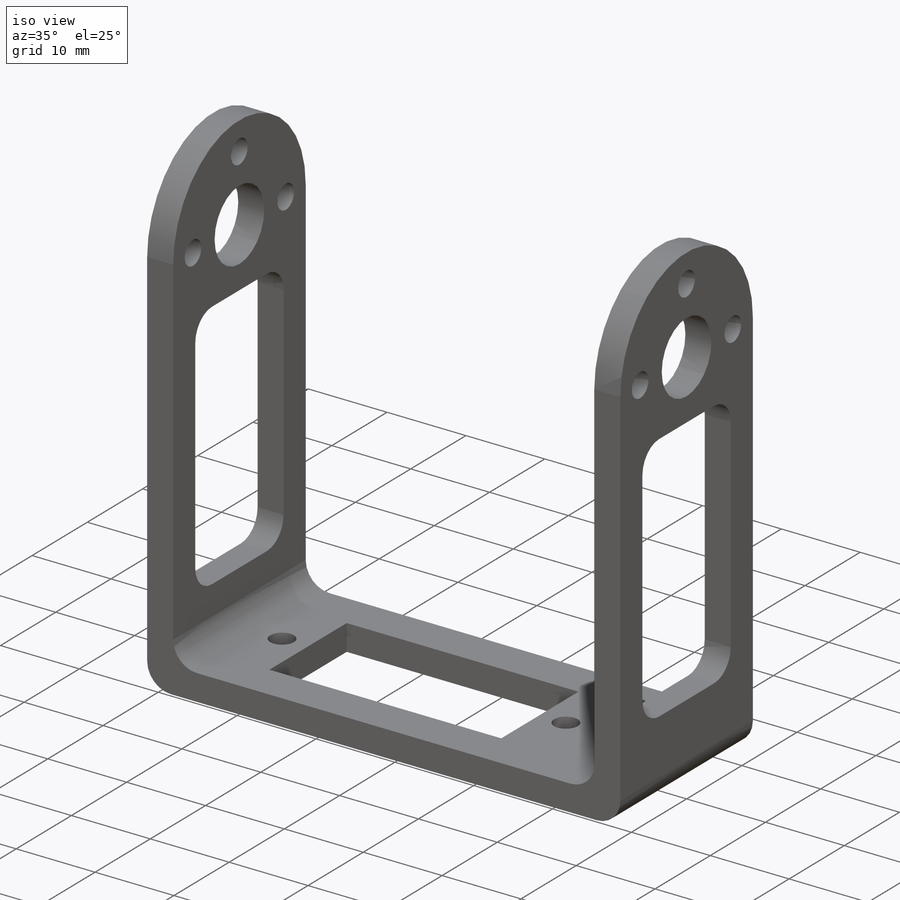
[diagram: iso view]
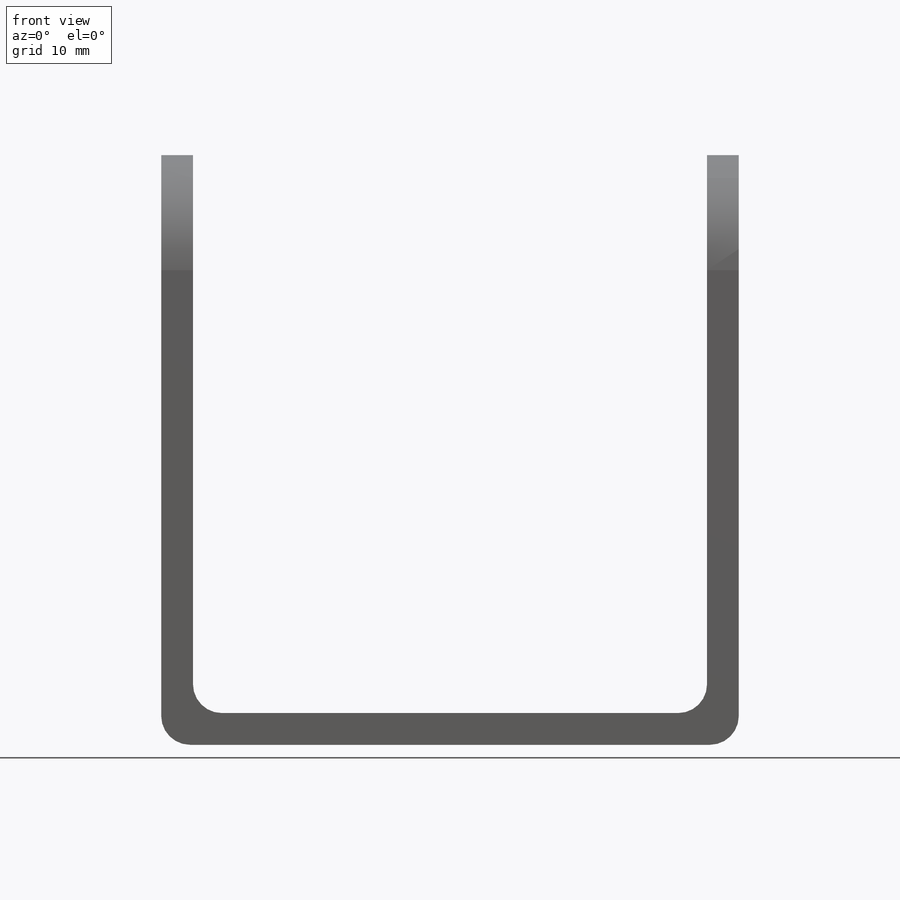
[diagram: front view]
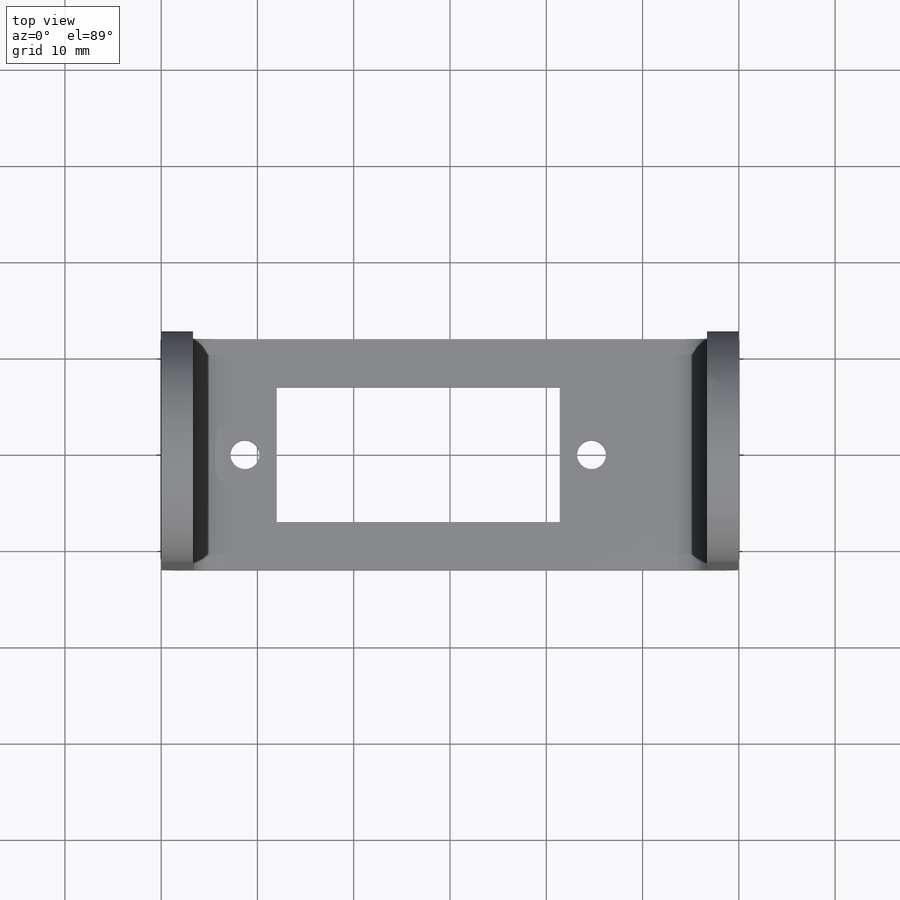
[diagram: top view]
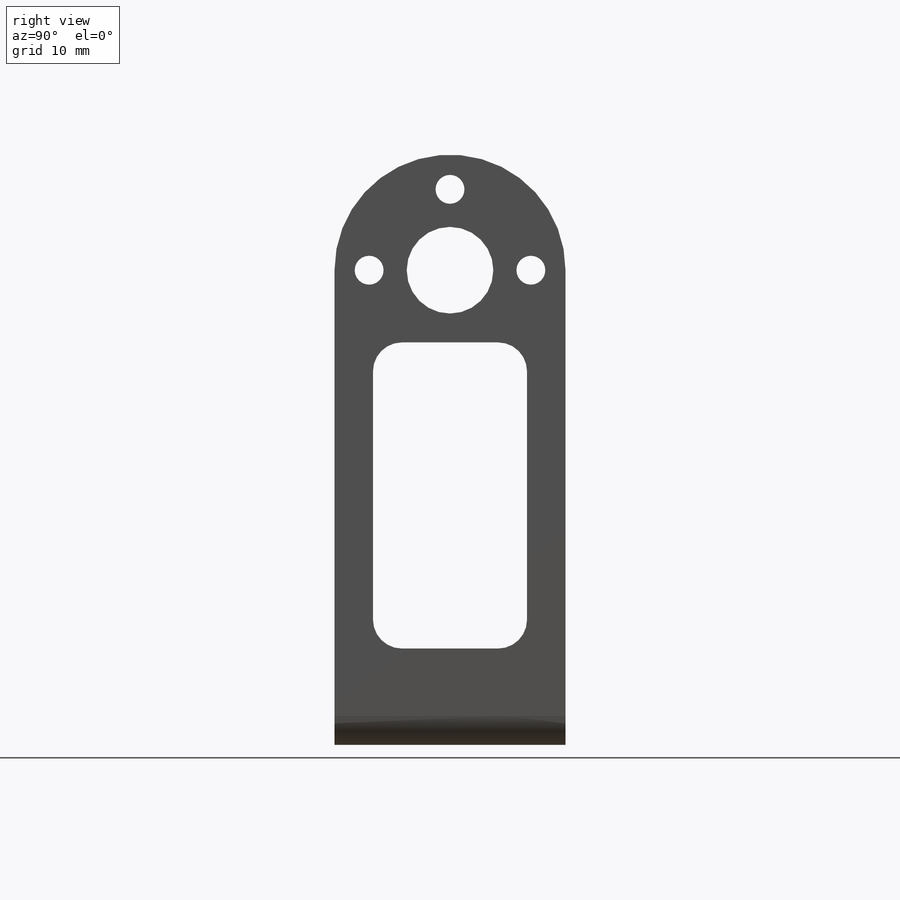
[diagram: right view]
SOLIDWORKS PART (.sldprt)
format: sldprt  version: not decoded by parser v0  size: 285,696 bytes
history: native  units: mm
features: sketch x6, cut_extrude x4, extrude x2, material x1, mirror x1, fillet x1 (+13 scaffold rows collapsed)
feature tree (28):
  scaffold x13  (default folders/planes/origin — collapsed)
  material  "1060 Alloy"
  sketch  "Sketch1"  dims[c1.D1=~48.559642mm c1.D2=~97.119283mm c2.D1=60.0mm c2.D2=24.0mm]
  extrude  "Boss-Extrude1"  Depth=3.3mm
  sketch  "Sketch2"  dims[c1.D1=24.0mm c1.D2=~4.953505mm c2.D1=3.3mm]
  extrude  "Boss-Extrude2"  Depth=61.3mm
  sketch  "Sketch3"  dims[c1.D1=~26.097829mm c1.D2=~12.492326mm c2.D1=31.8mm c2.D2=16.0mm c2.D3=10.0mm]
  cut_extrude  "Cut-Extrude1"  [1 undecoded]
  sketch  "Sketch4"  dims[D1=12.0mm]
  cut_extrude  "Cut-Extrude2"  [1 undecoded]
  sketch  "Sketch5"  dims[D1=9.0mm D2=3.0mm D3=4.0mm D4=8.4mm D5=3.0]
  cut_extrude  "Cut-Extrude3"  [1 undecoded]
  sketch  "Sketch7"  dims[c1.D1=~3.059346mm c1.D2=3.0mm c2.D1=~11.853279mm c2.D2=~30.303166mm c3.D1=36.0mm c3.D3=29.4mm c3.D4=14.0mm c3.D5=12.0mm]
  cut_extrude  "Cut-Extrude4"  [1 undecoded]
  mirror  "Mirror2"
  fillet  "Fillet1"  Radius=3mm
decode coverage: 9 of 14 modeling features carry decoded parameters
note: ~ marks probable driven/reference dimensions
note: 4 parameter values undecoded
summary: no parameter record found for 4 features
note: suppression state not decoded; provenance and decode notes live in map.json
